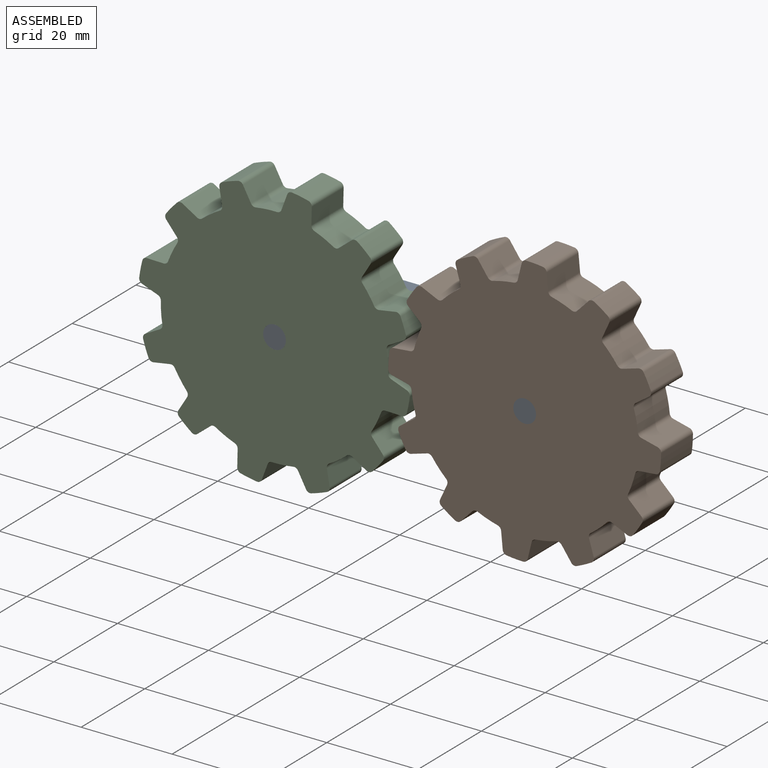
[diagram: assembled view]
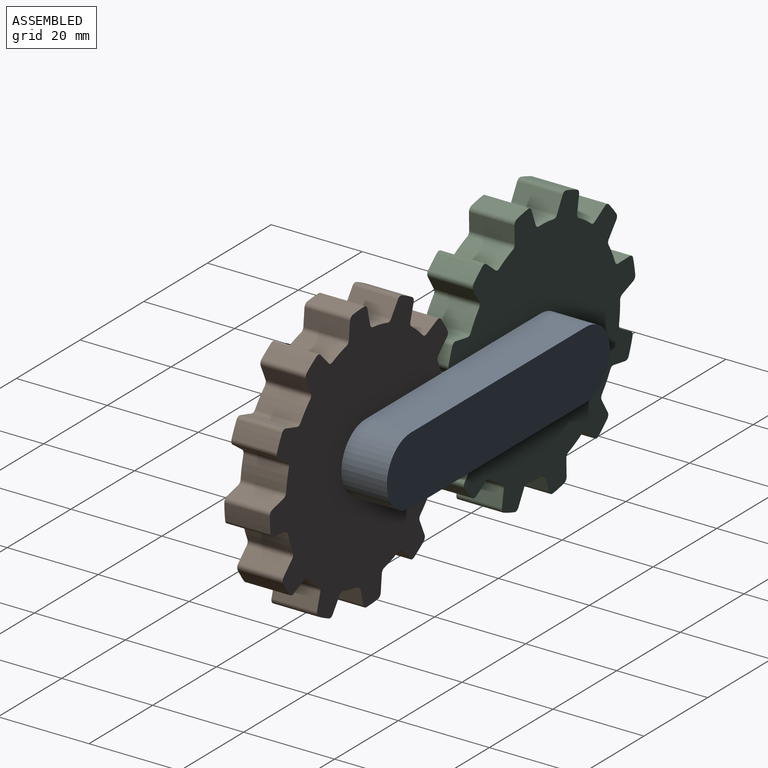
[diagram: assembled view, second angle]
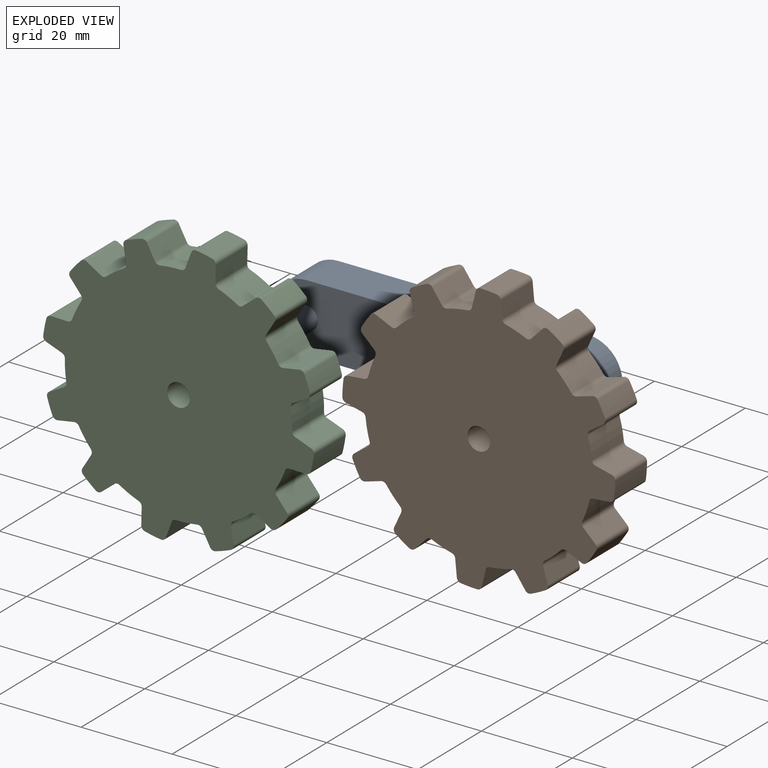
[diagram: exploded view]
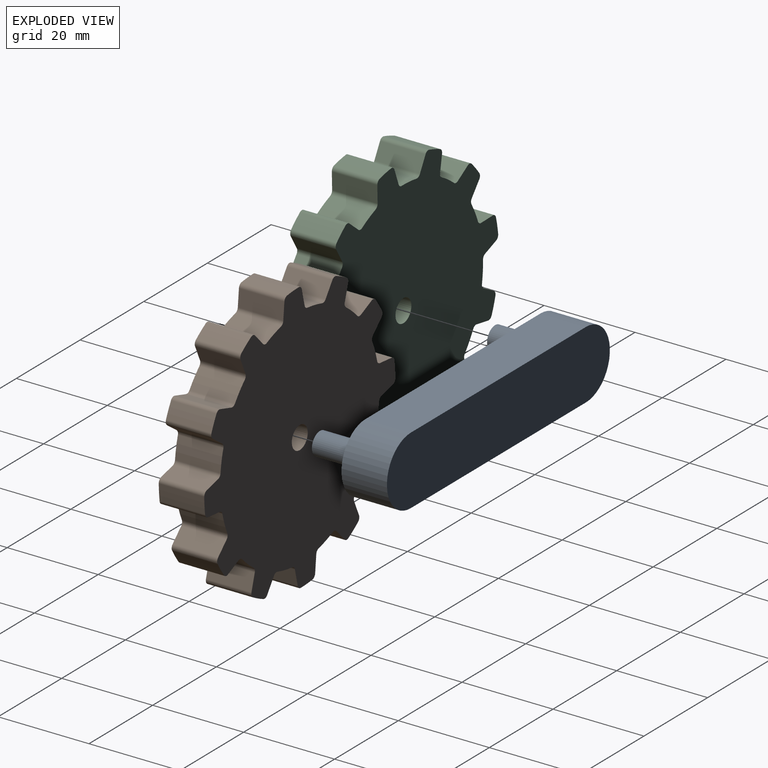
[diagram: exploded view, second angle]
ASSEMBLY  parts=3 mates=2
PART A: 10 faces, bbox 70x20x15 mm
  f0: cylinder r=7.5mm len=15mm, axis (0,1,0), area 235.6mm2, adj f1,f3,f4,f5
  f1: plane 55x10mm, normal (0,0,-1), area 550mm2, adj f0,f2,f4,f5
  f2: cylinder r=7.5mm len=15mm, axis (0,1,0), area 235.6mm2, adj f1,f3,f4,f5
  f3: plane 55x10mm, normal (0,0,1), area 550mm2, adj f0,f2,f4,f5
  f4: plane 70x15mm, normal (0,-1,0), area 1001.7mm2, adj f0,f1,f2,f3
  f5: plane 70x15mm, normal (0,1,0), area 962.4mm2, adj f0,f1,f2,f3,f7,f9
  f6: plane 5x5mm, normal (0,1,0), area 19.6mm2, adj f7
  f7: cylinder r=2.5mm len=10mm, axis (0,-1,0), area 157.1mm2, adj f5,f6
  f8: plane 5x5mm, normal (0,1,0), area 19.6mm2, adj f9
  f9: cylinder r=2.5mm len=10mm, axis (0,-1,0), area 157.1mm2, adj f5,f8
PART B: 99 faces, bbox 60x10x60 mm
  f0: plane 10x2.85mm, normal (-0.77,0,0.64), area 37mm2, adj f6,f7,f8,f11
  f1: cylinder r=25mm len=10mm, axis (0,1,0), area 46.9mm2, adj f6,f7,f8,f9
  f2: plane 10x3.64mm, normal (0.99,0,0.17), area 37mm2, adj f6,f7,f9,f10
  f3: cylinder r=30mm len=10mm, axis (0,1,0), area 36.4mm2, adj f6,f7,f10,f19
  f4: cylinder r=2.5mm len=10mm, axis (0,1,0), area 157.1mm2, adj f6,f7
  f5: cylinder r=30mm len=10mm, axis (0,1,0), area 36.4mm2, adj f6,f7,f11,f97
  f6: plane 60x60mm, normal (0,-1,0), area 2309.6mm2, adj f0,f1,f2,f3,f4,f5,f8,f9
  f7: plane 60x60mm, normal (0,1,0), area 2309.6mm2, adj f0,f1,f2,f3,f4,f5,f8,f9
  f8: cylinder r=1mm len=10mm, axis (0,1,0), area 12.4mm2, adj f0,f1,f6,f7
  f9: cylinder r=1mm len=10mm, axis (0,1,0), area 12.4mm2, adj f1,f2,f6,f7
  f10: cylinder r=1mm len=10mm, axis (0,1,0), area 13.4mm2, adj f2,f3,f6,f7
  f11: cylinder r=1mm len=10mm, axis (0,1,0), area 13.4mm2, adj f0,f5,f6,f7
  f12: plane 10x3.64mm, normal (-0.99,0,0.17), area 37mm2, adj f6,f7,f16,f19
  f13: cylinder r=25mm len=10mm, axis (0,1,0), area 46.9mm2, adj f6,f7,f16,f17
  f14: plane 10x2.85mm, normal (0.77,0,0.64), area 37mm2, adj f6,f7,f17,f18
  f15: cylinder r=30mm len=10mm, axis (0,1,0), area 36.4mm2, adj f6,f7,f18,f27
  f16: cylinder r=1mm len=10mm, axis (0,1,0), area 12.4mm2, adj f6,f7,f12,f13
  f17: cylinder r=1mm len=10mm, axis (0,1,0), area 12.4mm2, adj f6,f7,f13,f14
  f18: cylinder r=1mm len=10mm, axis (0,1,0), area 13.4mm2, adj f6,f7,f14,f15
  f19: cylinder r=1mm len=10mm, axis (0,1,0), area 13.4mm2, adj f3,f6,f7,f12
  f20: plane 10x3.46mm, normal (-0.94,0,-0.35), area 37mm2, adj f6,f7,f24,f27
  f21: cylinder r=25mm len=10mm, axis (0,1,0), area 46.9mm2, adj f6,f7,f24,f25
  f22: plane 10x3.46mm, normal (0.35,0,0.94), area 37mm2, adj f6,f7,f25,f26
  f23: cylinder r=30mm len=10mm, axis (0,1,0), area 36.4mm2, adj f6,f7,f26,f35
  f24: cylinder r=1mm len=10mm, axis (0,1,0), area 12.4mm2, adj f6,f7,f20,f21
  f25: cylinder r=1mm len=10mm, axis (0,1,0), area 12.4mm2, adj f6,f7,f21,f22
  f26: cylinder r=1mm len=10mm, axis (0,1,0), area 13.4mm2, adj f6,f7,f22,f23
  f27: cylinder r=1mm len=10mm, axis (0,1,0), area 13.4mm2, adj f6,f7,f15,f20
  f28: plane 10x2.85mm, normal (-0.64,0,-0.77), area 37mm2, adj f6,f7,f32,f35
  f29: cylinder r=25mm len=10mm, axis (0,1,0), area 46.9mm2, adj f6,f7,f32,f33
  f30: plane 10x3.64mm, normal (-0.17,0,0.99), area 37mm2, adj f6,f7,f33,f34
  f31: cylinder r=30mm len=10mm, axis (0,1,0), area 36.4mm2, adj f6,f7,f34,f43
  f32: cylinder r=1mm len=10mm, axis (0,1,0), area 12.4mm2, adj f6,f7,f28,f29
  f33: cylinder r=1mm len=10mm, axis (0,1,0), area 12.4mm2, adj f6,f7,f29,f30
  f34: cylinder r=1mm len=10mm, axis (0,1,0), area 13.4mm2, adj f6,f7,f30,f31
  f35: cylinder r=1mm len=10mm, axis (0,1,0), area 13.4mm2, adj f6,f7,f23,f28
  f36: plane 10x3.64mm, normal (-0.17,0,-0.99), area 37mm2, adj f6,f7,f40,f43
  f37: cylinder r=25mm len=10mm, axis (0,1,0), area 46.9mm2, adj f6,f7,f40,f41
  f38: plane 10x2.85mm, normal (-0.64,0,0.77), area 37mm2, adj f6,f7,f41,f42
  f39: cylinder r=30mm len=10mm, axis (0,1,0), area 36.4mm2, adj f6,f7,f42,f51
  f40: cylinder r=1mm len=10mm, axis (0,1,0), area 12.4mm2, adj f6,f7,f36,f37
  f41: cylinder r=1mm len=10mm, axis (0,1,0), area 12.4mm2, adj f6,f7,f37,f38
  f42: cylinder r=1mm len=10mm, axis (0,1,0), area 13.4mm2, adj f6,f7,f38,f39
  f43: cylinder r=1mm len=10mm, axis (0,1,0), area 13.4mm2, adj f6,f7,f31,f36
  f44: plane 10x3.46mm, normal (0.35,0,-0.94), area 37mm2, adj f6,f7,f48,f51
  f45: cylinder r=25mm len=10mm, axis (0,1,0), area 46.9mm2, adj f6,f7,f48,f49
  f46: plane 10x3.46mm, normal (-0.94,0,0.35), area 37mm2, adj f6,f7,f49,f50
  f47: cylinder r=30mm len=10mm, axis (0,1,0), area 36.4mm2, adj f6,f7,f50,f59
  f48: cylinder r=1mm len=10mm, axis (0,1,0), area 12.4mm2, adj f6,f7,f44,f45
  f49: cylinder r=1mm len=10mm, axis (0,1,0), area 12.4mm2, adj f6,f7,f45,f46
  f50: cylinder r=1mm len=10mm, axis (0,1,0), area 13.4mm2, adj f6,f7,f46,f47
  f51: cylinder r=1mm len=10mm, axis (0,1,0), area 13.4mm2, adj f6,f7,f39,f44
  f52: plane 10x2.85mm, normal (0.77,0,-0.64), area 37mm2, adj f6,f7,f56,f59
  f53: cylinder r=25mm len=10mm, axis (0,1,0), area 46.9mm2, adj f6,f7,f56,f57
  f54: plane 10x3.64mm, normal (-0.99,0,-0.17), area 37mm2, adj f6,f7,f57,f58
  f55: cylinder r=30mm len=10mm, axis (0,1,0), area 36.4mm2, adj f6,f7,f58,f67
  f56: cylinder r=1mm len=10mm, axis (0,1,0), area 12.4mm2, adj f6,f7,f52,f53
  f57: cylinder r=1mm len=10mm, axis (0,1,0), area 12.4mm2, adj f6,f7,f53,f54
  f58: cylinder r=1mm len=10mm, axis (0,1,0), area 13.4mm2, adj f6,f7,f54,f55
  f59: cylinder r=1mm len=10mm, axis (0,1,0), area 13.4mm2, adj f6,f7,f47,f52
  f60: plane 10x3.64mm, normal (0.99,0,-0.17), area 37mm2, adj f6,f7,f64,f67
  f61: cylinder r=25mm len=10mm, axis (0,1,0), area 46.9mm2, adj f6,f7,f64,f65
  f62: plane 10x2.85mm, normal (-0.77,0,-0.64), area 37mm2, adj f6,f7,f65,f66
  f63: cylinder r=30mm len=10mm, axis (0,1,0), area 36.4mm2, adj f6,f7,f66,f75
  f64: cylinder r=1mm len=10mm, axis (0,1,0), area 12.4mm2, adj f6,f7,f60,f61
  f65: cylinder r=1mm len=10mm, axis (0,1,0), area 12.4mm2, adj f6,f7,f61,f62
  f66: cylinder r=1mm len=10mm, axis (0,1,0), area 13.4mm2, adj f6,f7,f62,f63
  f67: cylinder r=1mm len=10mm, axis (0,1,0), area 13.4mm2, adj f6,f7,f55,f60
  f68: plane 10x3.46mm, normal (0.94,0,0.35), area 37mm2, adj f6,f7,f72,f75
  f69: cylinder r=25mm len=10mm, axis (0,1,0), area 46.9mm2, adj f6,f7,f72,f73
  f70: plane 10x3.46mm, normal (-0.35,0,-0.94), area 37mm2, adj f6,f7,f73,f74
  f71: cylinder r=30mm len=10mm, axis (0,1,0), area 36.4mm2, adj f6,f7,f74,f83
  f72: cylinder r=1mm len=10mm, axis (0,1,0), area 12.4mm2, adj f6,f7,f68,f69
  f73: cylinder r=1mm len=10mm, axis (0,1,0), area 12.4mm2, adj f6,f7,f69,f70
  f74: cylinder r=1mm len=10mm, axis (0,1,0), area 13.4mm2, adj f6,f7,f70,f71
  f75: cylinder r=1mm len=10mm, axis (0,1,0), area 13.4mm2, adj f6,f7,f63,f68
  f76: plane 10x2.85mm, normal (0.64,0,0.77), area 37mm2, adj f6,f7,f80,f83
  f77: cylinder r=25mm len=10mm, axis (0,1,0), area 46.9mm2, adj f6,f7,f80,f81
  f78: plane 10x3.64mm, normal (0.17,0,-0.99), area 37mm2, adj f6,f7,f81,f82
  f79: cylinder r=30mm len=10mm, axis (0,1,0), area 36.4mm2, adj f6,f7,f82,f91
  f80: cylinder r=1mm len=10mm, axis (0,1,0), area 12.4mm2, adj f6,f7,f76,f77
  f81: cylinder r=1mm len=10mm, axis (0,1,0), area 12.4mm2, adj f6,f7,f77,f78
  f82: cylinder r=1mm len=10mm, axis (0,1,0), area 13.4mm2, adj f6,f7,f78,f79
  f83: cylinder r=1mm len=10mm, axis (0,1,0), area 13.4mm2, adj f6,f7,f71,f76
  f84: plane 10x3.64mm, normal (0.17,0,0.99), area 37mm2, adj f6,f7,f88,f91
  f85: cylinder r=25mm len=10mm, axis (0,1,0), area 46.9mm2, adj f6,f7,f88,f89
  f86: plane 10x2.85mm, normal (0.64,0,-0.77), area 37mm2, adj f6,f7,f89,f90
  f87: cylinder r=30mm len=10mm, axis (0,1,0), area 36.4mm2, adj f6,f7,f90,f98
  f88: cylinder r=1mm len=10mm, axis (0,1,0), area 12.4mm2, adj f6,f7,f84,f85
  f89: cylinder r=1mm len=10mm, axis (0,1,0), area 12.4mm2, adj f6,f7,f85,f86
  f90: cylinder r=1mm len=10mm, axis (0,1,0), area 13.4mm2, adj f6,f7,f86,f87
  f91: cylinder r=1mm len=10mm, axis (0,1,0), area 13.4mm2, adj f6,f7,f79,f84
  f92: plane 10x3.46mm, normal (-0.35,0,0.94), area 37mm2, adj f6,f7,f95,f98
  f93: cylinder r=25mm len=10mm, axis (0,1,0), area 46.9mm2, adj f6,f7,f95,f96
  f94: plane 10x3.46mm, normal (0.94,0,-0.35), area 37mm2, adj f6,f7,f96,f97
  f95: cylinder r=1mm len=10mm, axis (0,1,0), area 12.4mm2, adj f6,f7,f92,f93
  f96: cylinder r=1mm len=10mm, axis (0,1,0), area 12.4mm2, adj f6,f7,f93,f94
  f97: cylinder r=1mm len=10mm, axis (0,1,0), area 13.4mm2, adj f5,f6,f7,f94
  f98: cylinder r=1mm len=10mm, axis (0,1,0), area 13.4mm2, adj f6,f7,f87,f92
PART C: same geometry as B
PLACE A rot(axis=(1,0,0),180deg) t=(-27.5,-10,0)mm fixed
PLACE B rot(axis=(0,-1,0),145.9deg) t=(27.5,-10,0)mm
PLACE C rot(axis=(0.81,0,-0.58),180deg) t=(-27.5,-20,0)mm
MATE revolute C.f13 <-> A.f9  axis (0,-1,0) through (-27.5,-20,0)mm
MATE revolute B.f1 <-> A.f7  axis (0,-1,0) through (27.5,-20,0)mm
